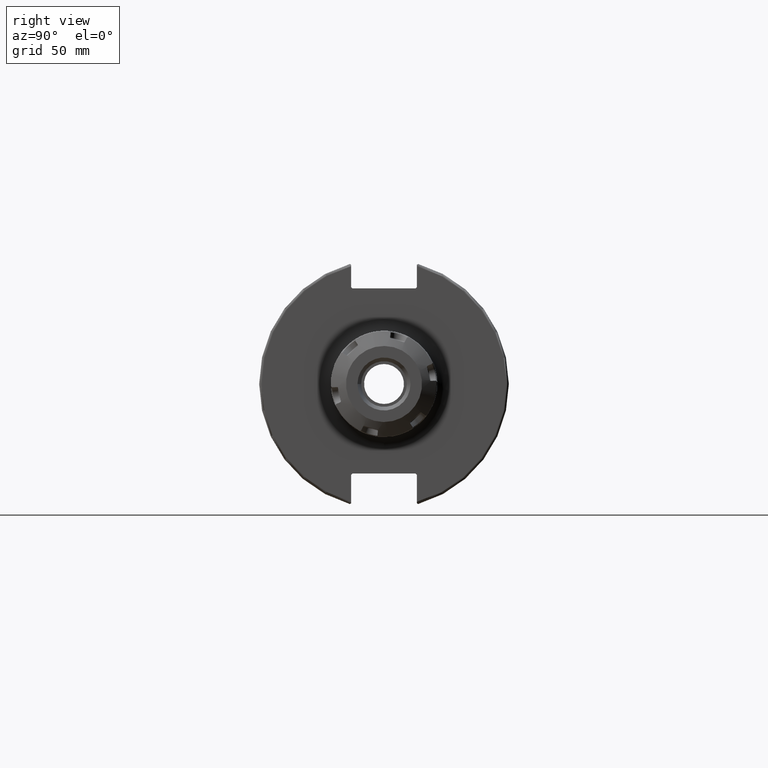
[diagram: clean part render]
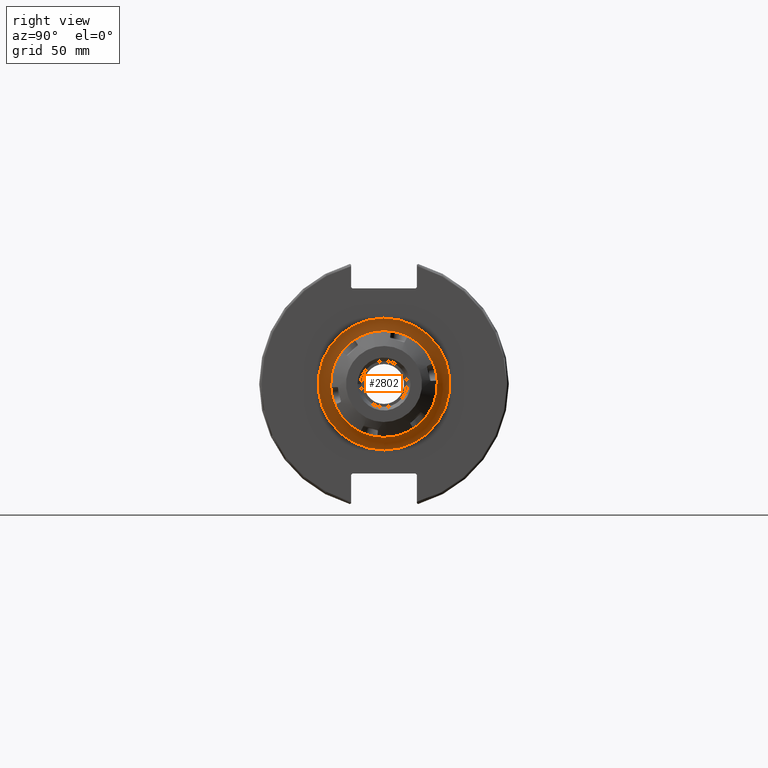
[diagram: same view with one face highlighted and labeled with its STEP entity id]
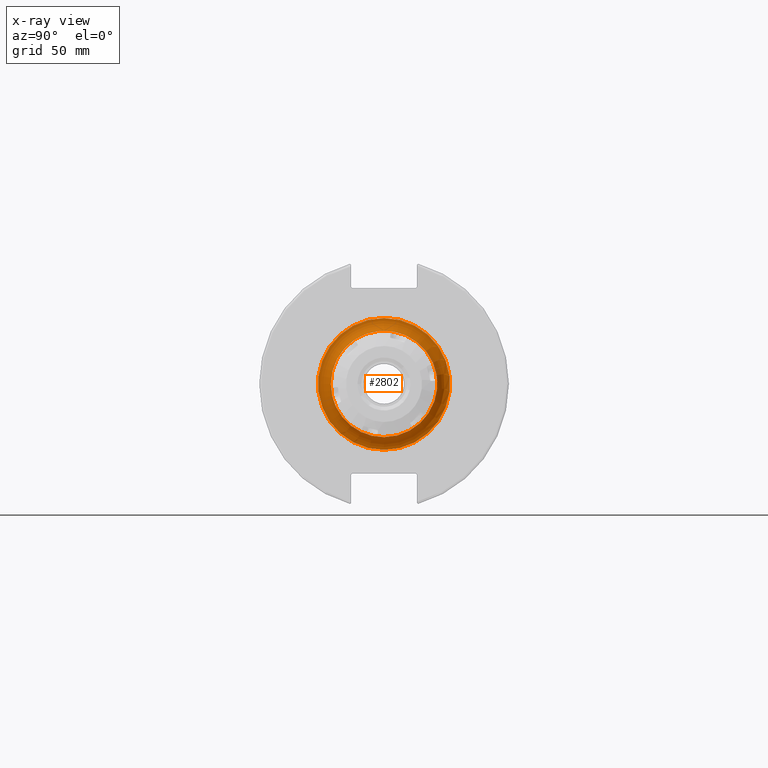
[diagram: x-ray of the same camera — body ghosted, the highlighted face saturated]
A machine part, right view. The second image highlights one B-rep face of the part: STEP entity #2802.
The next image is the same camera in x-ray: the body ghosted, the highlighted face saturated — about 1% of this face is hidden behind the body in this view.
In plain terms, the highlighted toroidal blend (fillet) surface has major radius 26 mm and minor (blend) radius 5 mm.
Its self-contained STEP definition (entity closure, byte-faithful):
#57=TOROIDAL_SURFACE('',#3066,26.,5.);
#302=FACE_OUTER_BOUND('',#476,.T.);
#476=EDGE_LOOP('',(#1936,#1937,#1938,#1939,#1940));
#1044=CIRCLE('',#3058,21.);
#1045=CIRCLE('',#3059,21.);
#1050=CIRCLE('',#3067,5.);
#1051=CIRCLE('',#3068,26.);
#1185=VERTEX_POINT('',#4307);
#1186=VERTEX_POINT('',#4309);
#1190=VERTEX_POINT('',#4323);
#1473=EDGE_CURVE('',#1186,#1185,#1044,.T.);
#1474=EDGE_CURVE('',#1185,#1186,#1045,.T.);
#1480=EDGE_CURVE('',#1186,#1190,#1050,.T.);
#1481=EDGE_CURVE('',#1190,#1190,#1051,.T.);
#1936=ORIENTED_EDGE('',*,*,#1474,.T.);
#1937=ORIENTED_EDGE('',*,*,#1480,.T.);
#1938=ORIENTED_EDGE('',*,*,#1481,.T.);
#1939=ORIENTED_EDGE('',*,*,#1480,.F.);
#1940=ORIENTED_EDGE('',*,*,#1473,.T.);
#2802=ADVANCED_FACE('',(#302),#57,.F.);
#3058=AXIS2_PLACEMENT_3D('',#4310,#3397,#3398);
#3059=AXIS2_PLACEMENT_3D('',#4311,#3399,#3400);
#3066=AXIS2_PLACEMENT_3D('',#4322,#3414,#3415);
#3067=AXIS2_PLACEMENT_3D('',#4324,#3416,#3417);
#3068=AXIS2_PLACEMENT_3D('',#4325,#3418,#3419);
#3397=DIRECTION('center_axis',(-1.,0.,0.));
#3398=DIRECTION('ref_axis',(0.,-1.,-1.22464679914735E-16));
#3399=DIRECTION('center_axis',(-1.,0.,0.));
#3400=DIRECTION('ref_axis',(0.,-1.,-1.22464679914735E-16));
#3414=DIRECTION('center_axis',(-1.,0.,0.));
#3415=DIRECTION('ref_axis',(0.,0.,1.));
#3416=DIRECTION('center_axis',(0.,-1.,1.22464679914735E-16));
#3417=DIRECTION('ref_axis',(0.,-1.22464679914735E-16,-1.));
#3418=DIRECTION('center_axis',(1.,0.,0.));
#3419=DIRECTION('ref_axis',(0.,-1.,-1.22464679914735E-16));
#4307=CARTESIAN_POINT('',(24.05,-21.,-2.57175827820944E-15));
#4309=CARTESIAN_POINT('',(24.05,-2.57175827820944E-15,-21.));
#4310=CARTESIAN_POINT('Origin',(24.05,0.,0.));
#4311=CARTESIAN_POINT('Origin',(24.05,0.,0.));
#4322=CARTESIAN_POINT('Origin',(24.05,0.,0.));
#4323=CARTESIAN_POINT('',(19.05,-3.18408167778312E-15,-26.));
#4324=CARTESIAN_POINT('Origin',(24.05,-3.18408167778312E-15,-26.));
#4325=CARTESIAN_POINT('Origin',(19.05,0.,0.));